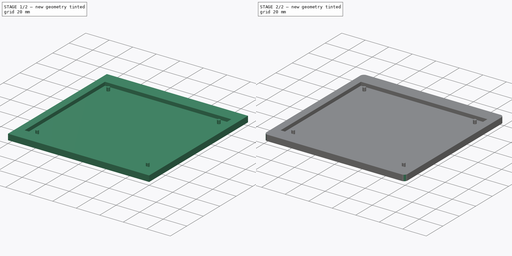
[diagram: build sequence overview — one tinted view per stage of 2, left to right]
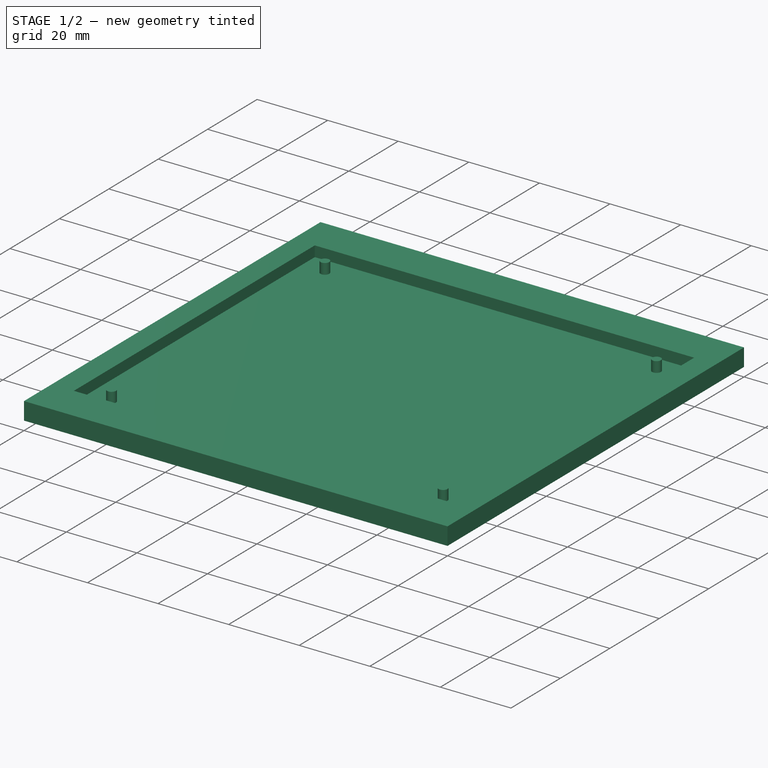
[diagram: stage 1 of 2 — iso view after this stage's code; geometry added in this stage tinted green]
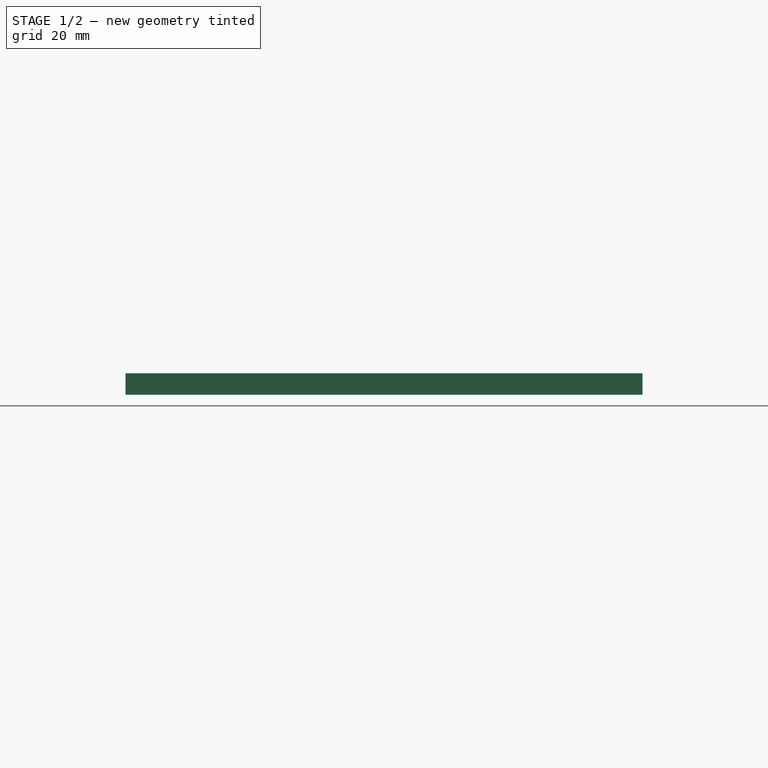
[diagram: stage 1 of 2 — front view after this stage's code; geometry added in this stage tinted green]
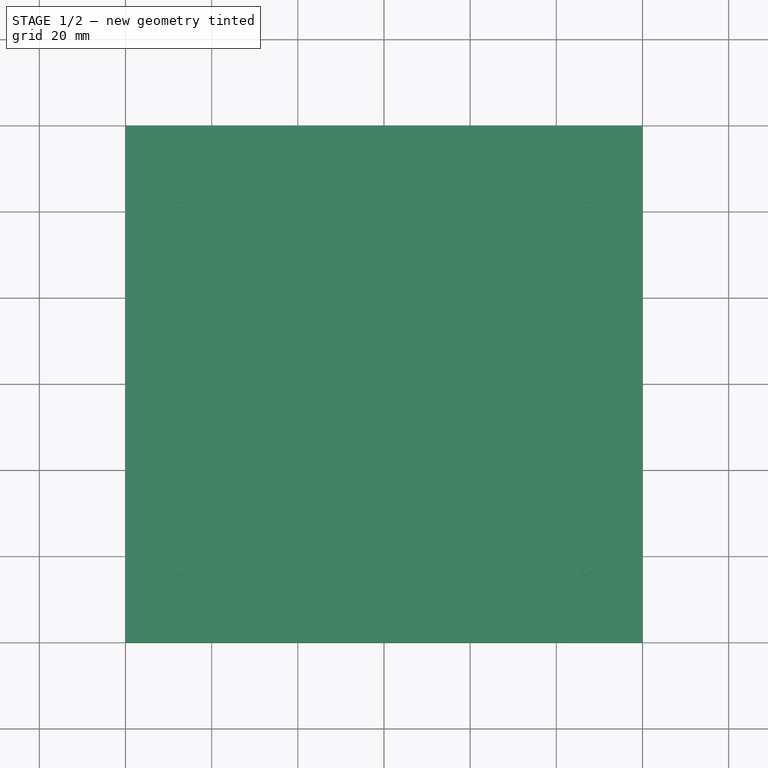
[diagram: stage 1 of 2 — top view after this stage's code; geometry added in this stage tinted green]
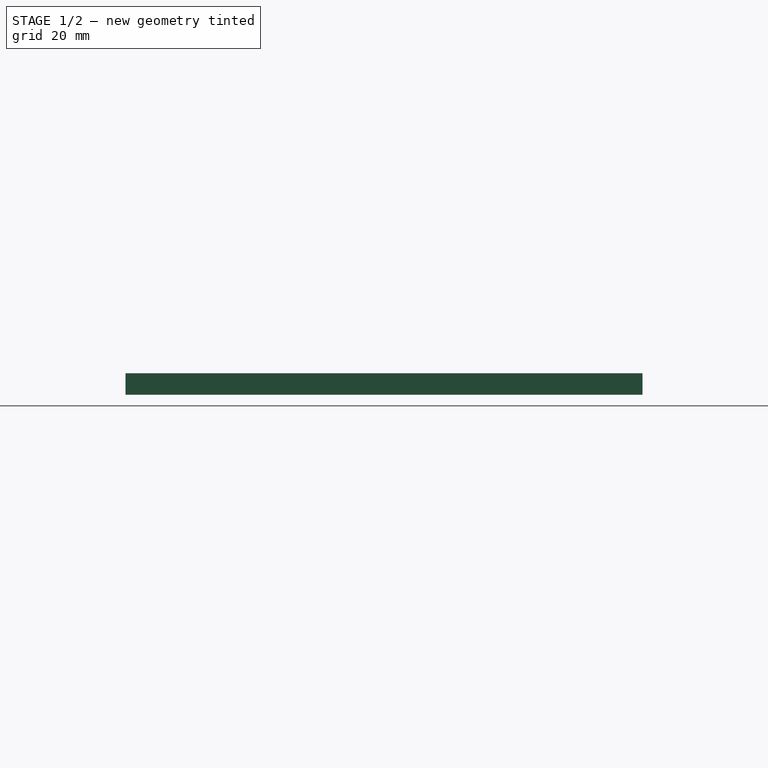
[diagram: stage 1 of 2 — right view after this stage's code; geometry added in this stage tinted green]
FCSTD DOCUMENT  (FreeCAD 0.18R16110 (Git))
Label: casing_bawah
License: All rights reserved
LicenseURL: http://en.wikipedia.org/wiki/All_rights_reserved
objects: Sketcher::SketchObject×2, PartDesign::Pad×1, PartDesign::Pocket×1, PartDesign::Body×1, Part::Fillet×1
note: 8 computed .brp shape members not serialized (recipe doc carries the construction recipe); baked Part::Feature solids carry a one-line shape summary decoded from their .brp

FEATURE [Sketcher::SketchObject] Sketch001  label="casing_bawah"
  MapMode = 2
  Placement = pos=(-60,-60,0) rot=(0,0,1;0rad)
  sketch-geometry (4):
    g0: LineSegment StartX=-60 StartY=-60 StartZ=0 EndX=60 EndY=-60 EndZ=0
    g1: LineSegment StartX=60 StartY=-60 StartZ=0 EndX=60 EndY=60 EndZ=0
    g2: LineSegment StartX=60 StartY=60 StartZ=0 EndX=-60 EndY=60 EndZ=0
    g3: LineSegment StartX=-60 StartY=60 StartZ=0 EndX=-60 EndY=-60 EndZ=0
  constraints (9):
    c: Coincident(g0,g1)
    c: Coincident(g1,g2)
    c: Coincident(g2,g3)
    c: Coincident(g3,g0)
    c: Vertical(g3)
    c: DistanceX(g0,g0) = 120
    c: Symmetric(g0,g0,g-2)
    c: Symmetric(g0,g1,g-1)
    c: DistanceY(g1,g1) = 120
FEATURE [Sketcher::SketchObject] CopyCopySketch  label="casing_pocket"
  MapMode = 2
  Placement = pos=(-120,-120,5) rot=(0,0,1;0rad)
  sketch-geometry (8):
    g0: LineSegment StartX=6.25 StartY=11.25 StartZ=0 EndX=113.75 EndY=11.25 EndZ=0
    g1: LineSegment StartX=113.75 StartY=11.25 StartZ=0 EndX=113.75 EndY=108.75 EndZ=0
    g2: LineSegment StartX=113.75 StartY=108.75 StartZ=0 EndX=6.25 EndY=108.75 EndZ=0
    g3: LineSegment StartX=6.25 StartY=108.75 StartZ=0 EndX=6.25 EndY=11.25 EndZ=0
    g4: Circle CenterX=13.01 CenterY=16.82 CenterZ=0 NormalX=0 NormalY=0 NormalZ=1 AngleXU=0 Radius=1.25
    g5: Circle CenterX=106.99 CenterY=16.82 CenterZ=0 NormalX=0 NormalY=0 NormalZ=1 AngleXU=0 Radius=1.25
    g6: Circle CenterX=106.99 CenterY=103.18 CenterZ=0 NormalX=0 NormalY=0 NormalZ=1 AngleXU=0 Radius=1.25
    g7: Circle CenterX=13.01 CenterY=103.18 CenterZ=0 NormalX=0 NormalY=0 NormalZ=1 AngleXU=0 Radius=1.25
  constraints (24):
    c: Coincident(g0,g1)
    c: Coincident(g1,g2)
    c: Coincident(g2,g3)
    c: Coincident(g3,g0)
    c: Horizontal(g0)
    c: Horizontal(g2)
    c: Vertical(g1)
    c: Vertical(g3)
    c: DistanceX(g0,g0) = 107.5
    c: DistanceY(g1,g1) = 97.5
    c: DistanceY(g-1,g0) = 11.25
    c: DistanceX(g-1,g0) = 6.25
    c: DistanceX(g0,g4) = 6.76
    c: DistanceY(g0,g4) = 5.57
    c: Radius(g4) = 1.25
    c: Equal(g4,g5) = 2.5
    c: Equal(g4,g6) = 2.5
    c: Equal(g4,g7) = 2.5
    c: DistanceX(g2,g7) = 6.76
    c: DistanceY(g7,g2) = 5.57
    c: DistanceY(g6,g1) = 5.57
    c: DistanceX(g6,g1) = 6.76
    c: DistanceX(g5,g0) = 6.76
    c: DistanceY(g0,g5) = 5.57
FEATURE [PartDesign::Pad] Pad
  Length = 5
  Length2 = 100
  Placement = pos=(-60,-60,0) rot=(0,0,1;0rad)
  Profile = -> Sketch001
  Type = 0
FEATURE [PartDesign::Pocket] Pocket
  BaseFeature = -> Pad
  Length = 3
  Length2 = 100
  Placement = pos=(-60,-60,0) rot=(0,0,1;0rad)
  Profile = -> CopyCopySketch
  Type = 0
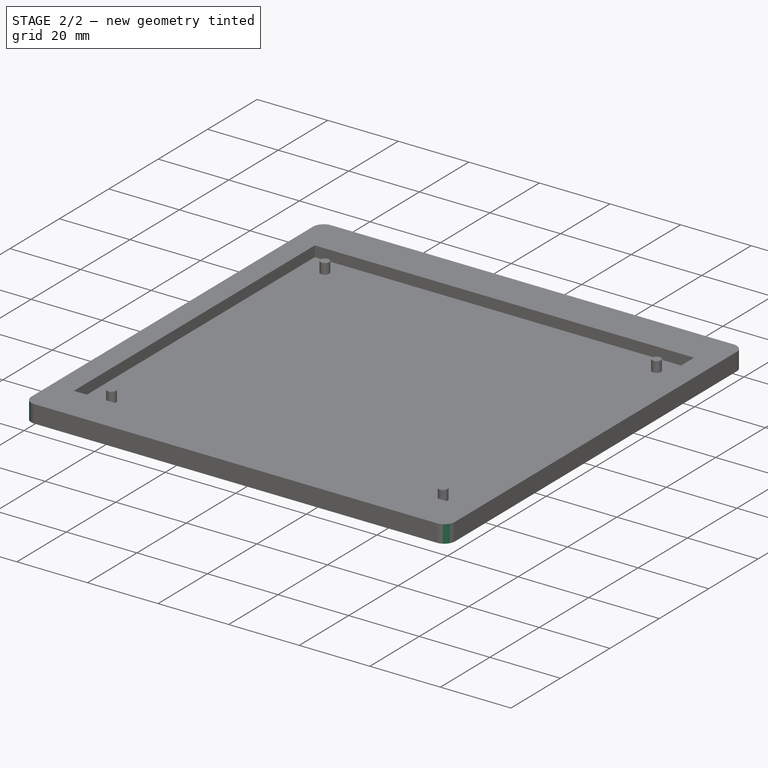
[diagram: stage 2 of 2 — iso view after this stage's code; geometry added in this stage tinted green]
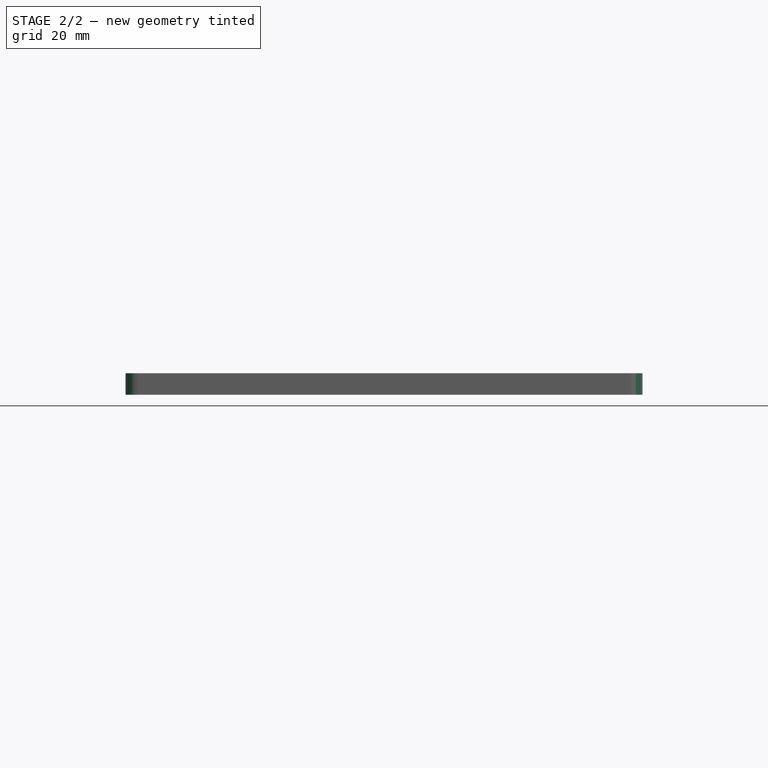
[diagram: stage 2 of 2 — front view after this stage's code; geometry added in this stage tinted green]
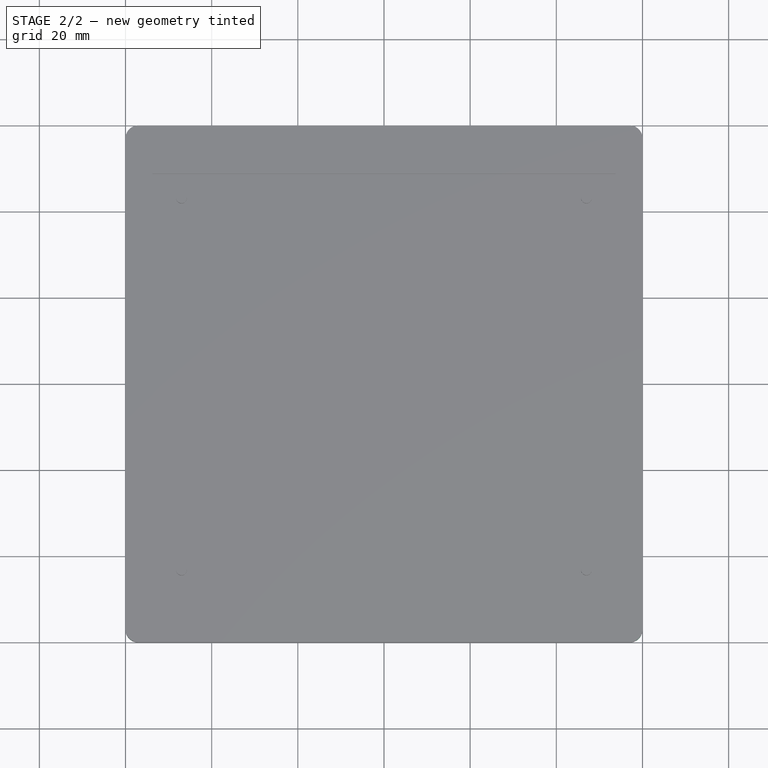
[diagram: stage 2 of 2 — top view after this stage's code; geometry added in this stage tinted green]
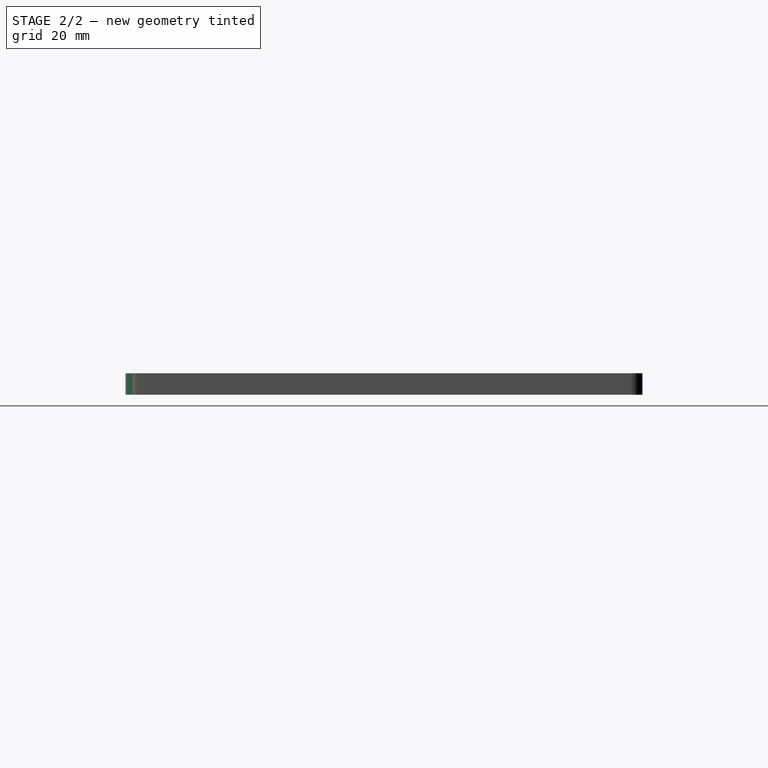
[diagram: stage 2 of 2 — right view after this stage's code; geometry added in this stage tinted green]
FEATURE [PartDesign::Body] Body
  Group = -> [Sketch001,Pad,CopyCopySketch,Pocket]
  Origin = -> Origin
  Tip = -> Pocket
FEATURE [Part::Fillet] Fillet
  Base = -> Pocket
  Edges = 4 edges r=3: [Edge1,Edge2,Edge5,Edge8]
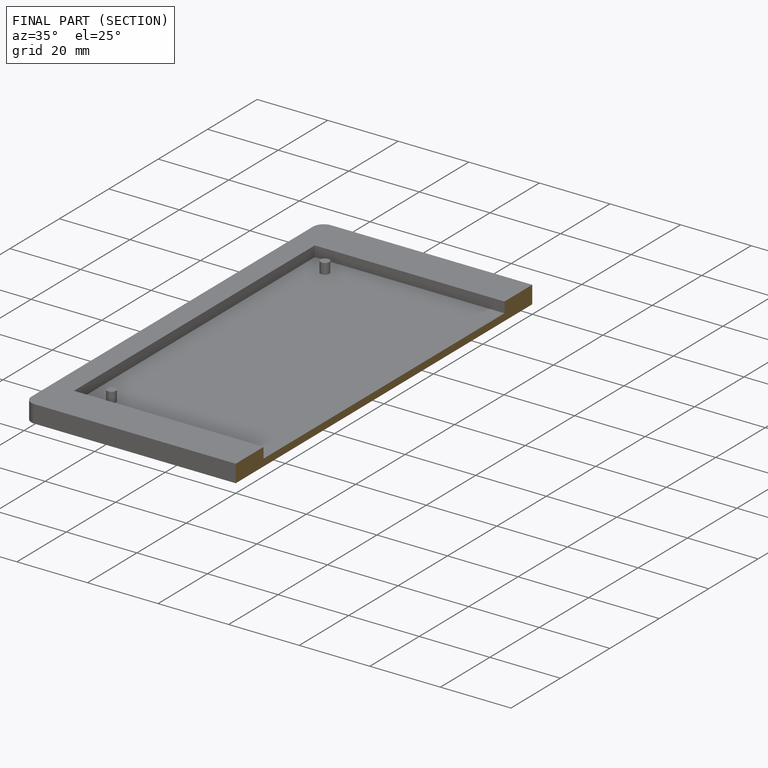
[diagram: finished part — half-section view (interior)]
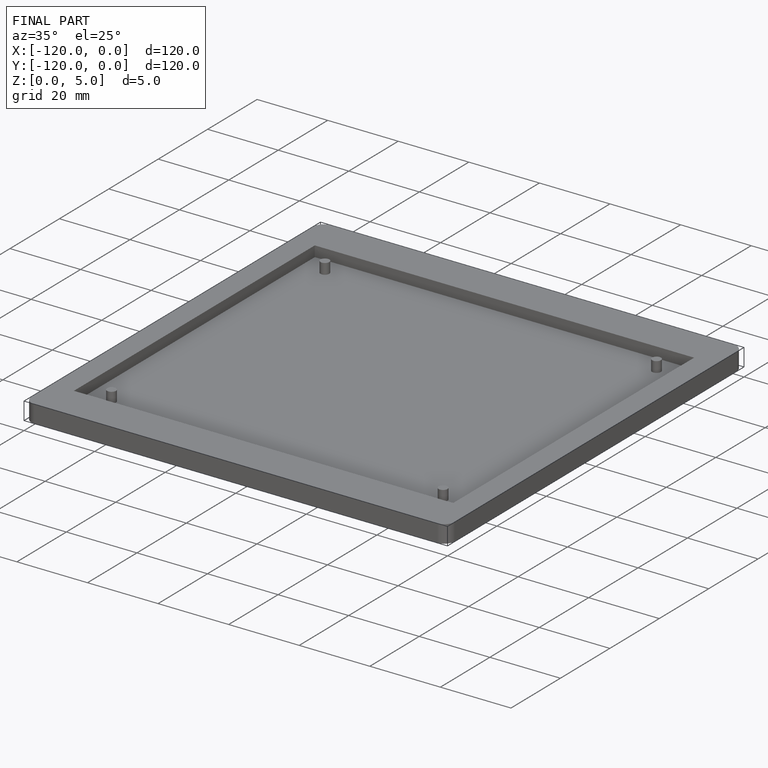
[diagram: finished part — iso view with bounding-box wireframe]
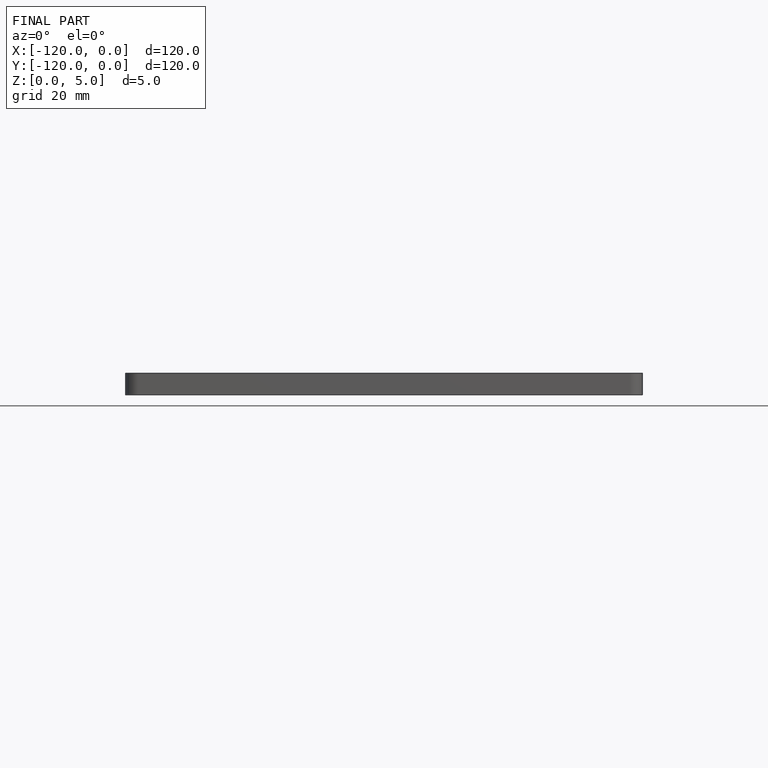
[diagram: finished part — front view with bounding-box wireframe]
